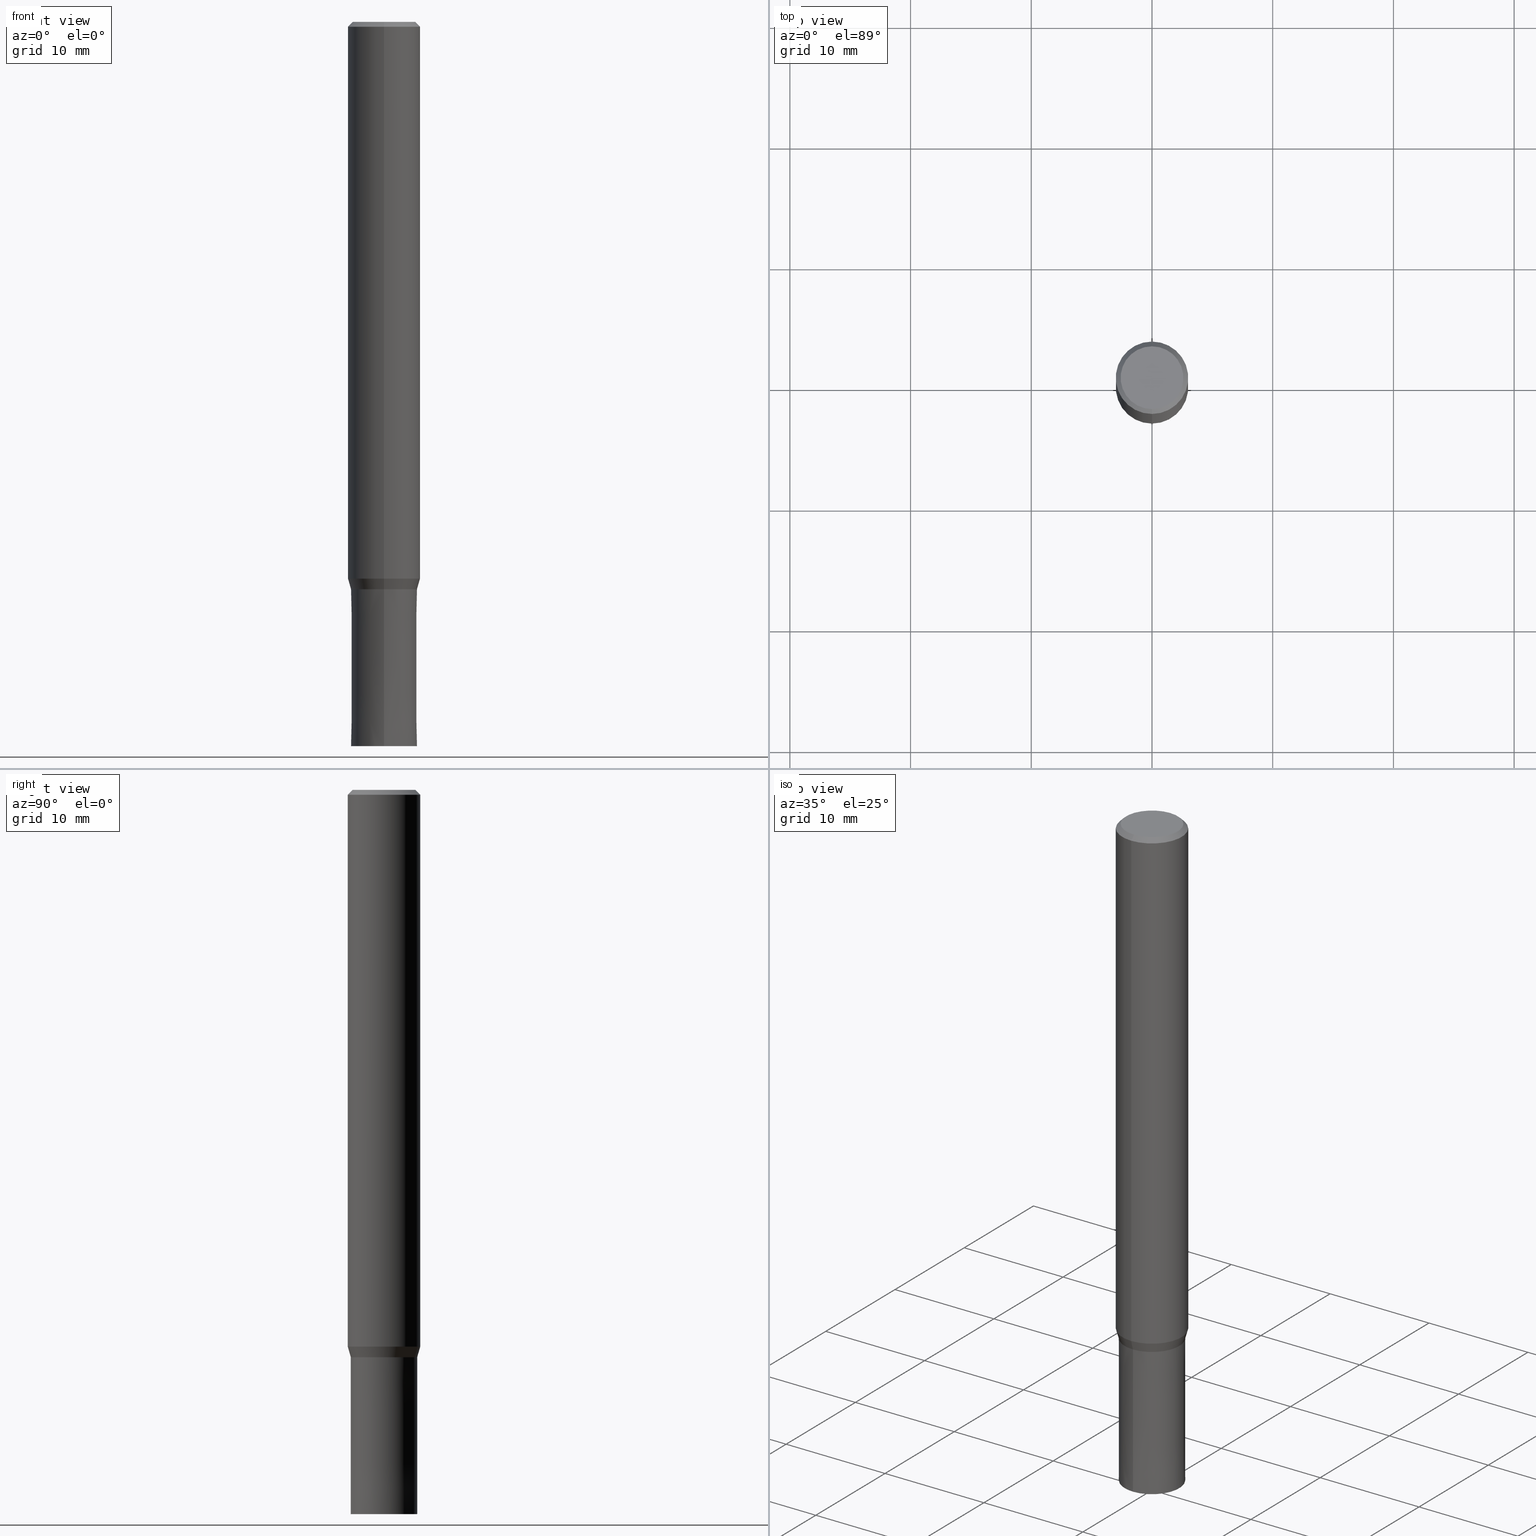
[diagram: canonical four-view strip — front | top / right | iso, engineering-drawing reading convention]
A machine part, canonical four-view strip (front | top / right | iso — engineering-drawing reading convention). The complete STEP part file that produces these views, byte-faithful:
ISO-10303-21;
HEADER;
FILE_DESCRIPTION(('no description'),'unknown implementation level');
FILE_NAME('CZS4055-1300-Huellk.stp','  ',('CIMSOURCE GmbH'),('CADClick - KiM GmbH - www.kimweb.de'),'unknown preprocess','ACIS','unknown authorization');
FILE_SCHEMA(('automotive_design'));
ENDSEC;
DATA;
#1=MECHANICAL_DESIGN_GEOMETRIC_PRESENTATION_REPRESENTATION(' ',(#14,#15,#16,#17,#18,#19,#20,#21,#22,#23,#24,#25,#26,#27,#28,#29,#30,#31,#32,#33,#34,#35,#36,#37,#38,#39,#40,#41,#42,#43,#44,#45,#46,#47,#48,#49,#50,#51,#52,#53,#54,#55,#56,#57,#58,#59,#60,#61,#62,#63,#64),#10);
#2=PRODUCT_DEFINITION_CONTEXT('',#65,'design');
#3=APPLICATION_PROTOCOL_DEFINITION('INTERNATIONAL STANDARD','automotive_design',1994,#65);
#4=PRODUCT_CATEGORY_RELATIONSHIP('NONE','NONE',#66,#67);
#5=SHAPE_DEFINITION_REPRESENTATION(#68,#69);
#6=PRODUCT_DEFINITION_CONTEXT('',#70,'design');
#7=APPLICATION_PROTOCOL_DEFINITION('INTERNATIONAL STANDARD','automotive_design',1994,#70);
#8=PRODUCT_CATEGORY_RELATIONSHIP('NONE','NONE',#71,#72);
#9=SHAPE_DEFINITION_REPRESENTATION(#73,#74);
#10= (GEOMETRIC_REPRESENTATION_CONTEXT(3)GLOBAL_UNCERTAINTY_ASSIGNED_CONTEXT((#77))GLOBAL_UNIT_ASSIGNED_CONTEXT((#79,#80,#81))REPRESENTATION_CONTEXT('NONE','WORKSPACE'));
#14=STYLED_ITEM('',(#83),#84);
#15=STYLED_ITEM('',(#85),#86);
#16=STYLED_ITEM('',(#87),#88);
#17=STYLED_ITEM('',(#89),#90);
#18=STYLED_ITEM('',(#91),#92);
#19=STYLED_ITEM('',(#93),#94);
#20=STYLED_ITEM('',(#95),#96);
#21=STYLED_ITEM('',(#97),#98);
#22=STYLED_ITEM('',(#99),#100);
#23=STYLED_ITEM('',(#101),#102);
#24=STYLED_ITEM('',(#103),#104);
#25=STYLED_ITEM('',(#105),#106);
#26=STYLED_ITEM('',(#107),#108);
#27=STYLED_ITEM('',(#109),#110);
#28=STYLED_ITEM('',(#111),#112);
#29=STYLED_ITEM('',(#113),#114);
#30=STYLED_ITEM('',(#115),#116);
#31=STYLED_ITEM('',(#117),#118);
#32=STYLED_ITEM('',(#119),#120);
#33=STYLED_ITEM('',(#121),#122);
#34=STYLED_ITEM('',(#123),#124);
#35=STYLED_ITEM('',(#125),#126);
#36=STYLED_ITEM('',(#127),#128);
#37=STYLED_ITEM('',(#129),#130);
#38=STYLED_ITEM('',(#131),#132);
#39=STYLED_ITEM('',(#133),#134);
#40=STYLED_ITEM('',(#135),#136);
#41=STYLED_ITEM('',(#137),#138);
#42=STYLED_ITEM('',(#139),#140);
#43=STYLED_ITEM('',(#141),#142);
#44=STYLED_ITEM('',(#143),#144);
#45=STYLED_ITEM('',(#145),#146);
#46=STYLED_ITEM('',(#147),#148);
#47=STYLED_ITEM('',(#149),#150);
#48=STYLED_ITEM('',(#151),#152);
#49=STYLED_ITEM('',(#153),#154);
#50=STYLED_ITEM('',(#155),#156);
#51=STYLED_ITEM('',(#157),#158);
#52=STYLED_ITEM('',(#159),#160);
#53=STYLED_ITEM('',(#161),#162);
#54=STYLED_ITEM('',(#163),#164);
#55=STYLED_ITEM('',(#165),#166);
#56=STYLED_ITEM('',(#167),#168);
#57=STYLED_ITEM('',(#169),#170);
#58=STYLED_ITEM('',(#171),#172);
#59=STYLED_ITEM('',(#173),#174);
#60=STYLED_ITEM('',(#175),#176);
#61=STYLED_ITEM('',(#177),#178);
#62=STYLED_ITEM('',(#179),#180);
#63=STYLED_ITEM('',(#181),#182);
#64=STYLED_ITEM('',(#183),#184);
#65=APPLICATION_CONTEXT(' ');
#66=PRODUCT_CATEGORY('part','NONE');
#67=PRODUCT_RELATED_PRODUCT_CATEGORY('detail',' ',(#185));
#68=PRODUCT_DEFINITION_SHAPE('NONE','NONE',#186);
#69=ADVANCED_BREP_SHAPE_REPRESENTATION('1',(#164,#187),#10);
#70=APPLICATION_CONTEXT(' ');
#71=PRODUCT_CATEGORY('part','NONE');
#72=PRODUCT_RELATED_PRODUCT_CATEGORY('detail',' ',(#188));
#73=PRODUCT_DEFINITION_SHAPE('NONE','NONE',#189);
#74=ADVANCED_BREP_SHAPE_REPRESENTATION('2',(#162,#190),#10);
#77=UNCERTAINTY_MEASURE_WITH_UNIT(LENGTH_MEASURE(1.0E-006),#79,'','');
#79= (CONVERSION_BASED_UNIT('MILLIMETRE',#193)LENGTH_UNIT()NAMED_UNIT(#196));
#80= (NAMED_UNIT(#198)PLANE_ANGLE_UNIT()SI_UNIT($,.RADIAN.));
#81= (NAMED_UNIT(#198)SOLID_ANGLE_UNIT()SI_UNIT($,.STERADIAN.));
#83=PRESENTATION_STYLE_ASSIGNMENT((#204));
#84=EDGE_CURVE('',#108,#136,#205,.T.);
#85=PRESENTATION_STYLE_ASSIGNMENT((#206));
#86=ADVANCED_FACE('',(#207),#208,.T.);
#87=PRESENTATION_STYLE_ASSIGNMENT((#209));
#88=VERTEX_POINT('',#210);
#89=PRESENTATION_STYLE_ASSIGNMENT((#211));
#90=EDGE_CURVE('',#136,#108,#212,.T.);
#91=PRESENTATION_STYLE_ASSIGNMENT((#213));
#92=EDGE_CURVE('',#166,#112,#214,.T.);
#93=PRESENTATION_STYLE_ASSIGNMENT((#215));
#94=VERTEX_POINT('',#216);
#95=PRESENTATION_STYLE_ASSIGNMENT((#217));
#96=ADVANCED_FACE('',(#218),#219,.T.);
#97=PRESENTATION_STYLE_ASSIGNMENT((#220));
#98=ADVANCED_FACE('',(#221),#222,.T.);
#99=PRESENTATION_STYLE_ASSIGNMENT((#223));
#100=EDGE_CURVE('',#112,#166,#224,.T.);
#101=PRESENTATION_STYLE_ASSIGNMENT((#225));
#102=EDGE_CURVE('',#108,#174,#226,.T.);
#103=PRESENTATION_STYLE_ASSIGNMENT((#227));
#104=EDGE_CURVE('',#154,#152,#228,.T.);
#105=PRESENTATION_STYLE_ASSIGNMENT((#229));
#106=ADVANCED_FACE('',(#230,#231),#232,.T.);
#107=PRESENTATION_STYLE_ASSIGNMENT((#233));
#108=VERTEX_POINT('',#234);
#109=PRESENTATION_STYLE_ASSIGNMENT((#235));
#110=EDGE_CURVE('',#172,#170,#236,.T.);
#111=PRESENTATION_STYLE_ASSIGNMENT((#237));
#112=VERTEX_POINT('',#238);
#113=PRESENTATION_STYLE_ASSIGNMENT((#239));
#114=EDGE_CURVE('',#170,#172,#240,.T.);
#115=PRESENTATION_STYLE_ASSIGNMENT((#241));
#116=EDGE_CURVE('',#152,#154,#242,.T.);
#117=PRESENTATION_STYLE_ASSIGNMENT((#243));
#118=ADVANCED_FACE('',(#244),#245,.T.);
#119=PRESENTATION_STYLE_ASSIGNMENT((#246));
#120=VERTEX_POINT('',#247);
#121=PRESENTATION_STYLE_ASSIGNMENT((#248));
#122=EDGE_CURVE('',#120,#94,#249,.T.);
#123=PRESENTATION_STYLE_ASSIGNMENT((#250));
#124=EDGE_CURVE('',#94,#120,#251,.T.);
#125=PRESENTATION_STYLE_ASSIGNMENT((#252));
#126=EDGE_CURVE('',#128,#170,#253,.T.);
#127=PRESENTATION_STYLE_ASSIGNMENT((#254));
#128=VERTEX_POINT('',#255);
#129=PRESENTATION_STYLE_ASSIGNMENT((#256));
#130=ADVANCED_FACE('',(#257),#258,.T.);
#131=PRESENTATION_STYLE_ASSIGNMENT((#259));
#132=EDGE_CURVE('',#94,#112,#260,.T.);
#133=PRESENTATION_STYLE_ASSIGNMENT((#261));
#134=EDGE_CURVE('',#172,#88,#262,.T.);
#135=PRESENTATION_STYLE_ASSIGNMENT((#263));
#136=VERTEX_POINT('',#264);
#137=PRESENTATION_STYLE_ASSIGNMENT((#265));
#138=EDGE_CURVE('',#136,#152,#266,.T.);
#139=PRESENTATION_STYLE_ASSIGNMENT((#267));
#140=ADVANCED_FACE('',(#268),#269,.T.);
#141=PRESENTATION_STYLE_ASSIGNMENT((#270));
#142=EDGE_CURVE('',#144,#174,#271,.T.);
#143=PRESENTATION_STYLE_ASSIGNMENT((#272));
#144=VERTEX_POINT('',#273);
#145=PRESENTATION_STYLE_ASSIGNMENT((#274));
#146=ADVANCED_FACE('',(#275),#276,.T.);
#147=PRESENTATION_STYLE_ASSIGNMENT((#277));
#148=EDGE_CURVE('',#128,#88,#278,.T.);
#149=PRESENTATION_STYLE_ASSIGNMENT((#279));
#150=ADVANCED_FACE('',(#280),#281,.T.);
#151=PRESENTATION_STYLE_ASSIGNMENT((#282));
#152=VERTEX_POINT('',#283);
#153=PRESENTATION_STYLE_ASSIGNMENT((#284));
#154=VERTEX_POINT('',#285);
#155=PRESENTATION_STYLE_ASSIGNMENT((#286));
#156=EDGE_CURVE('',#174,#144,#287,.T.);
#157=PRESENTATION_STYLE_ASSIGNMENT((#288));
#158=ADVANCED_FACE('',(#289),#290,.T.);
#159=PRESENTATION_STYLE_ASSIGNMENT((#291));
#160=EDGE_CURVE('',#166,#120,#292,.T.);
#161=PRESENTATION_STYLE_ASSIGNMENT((#293));
#162=MANIFOLD_SOLID_BREP('2',#294);
#163=PRESENTATION_STYLE_ASSIGNMENT((#295));
#164=MANIFOLD_SOLID_BREP('1',#296);
#165=PRESENTATION_STYLE_ASSIGNMENT((#297));
#166=VERTEX_POINT('',#298);
#167=PRESENTATION_STYLE_ASSIGNMENT((#299));
#168=ADVANCED_FACE('',(#300),#301,.T.);
#169=PRESENTATION_STYLE_ASSIGNMENT((#302));
#170=VERTEX_POINT('',#303);
#171=PRESENTATION_STYLE_ASSIGNMENT((#304));
#172=VERTEX_POINT('',#305);
#173=PRESENTATION_STYLE_ASSIGNMENT((#306));
#174=VERTEX_POINT('',#307);
#175=PRESENTATION_STYLE_ASSIGNMENT((#308));
#176=EDGE_CURVE('',#88,#128,#309,.T.);
#177=PRESENTATION_STYLE_ASSIGNMENT((#310));
#178=ADVANCED_FACE('',(#311),#312,.T.);
#179=PRESENTATION_STYLE_ASSIGNMENT((#313));
#180=EDGE_CURVE('',#154,#108,#314,.T.);
#181=PRESENTATION_STYLE_ASSIGNMENT((#315));
#182=EDGE_CURVE('',#144,#136,#316,.T.);
#183=PRESENTATION_STYLE_ASSIGNMENT((#317));
#184=ADVANCED_FACE('',(#318),#319,.T.);
#185=PRODUCT('1','1','PART-1-DESC',(#320));
#186=PRODUCT_DEFINITION('NONE','NONE',#321,#2);
#187=AXIS2_PLACEMENT_3D('',#322,#323,#324);
#188=PRODUCT('2','2','PART-2-DESC',(#325));
#189=PRODUCT_DEFINITION('NONE','NONE',#326,#6);
#190=AXIS2_PLACEMENT_3D('',#327,#328,#329);
#193=LENGTH_MEASURE_WITH_UNIT(LENGTH_MEASURE(1.0),#330);
#196=DIMENSIONAL_EXPONENTS(1.0,0.0,0.0,0.0,0.0,0.0,0.0);
#198=DIMENSIONAL_EXPONENTS(0.0,0.0,0.0,0.0,0.0,0.0,0.0);
#204=CURVE_STYLE('',#331,POSITIVE_LENGTH_MEASURE(1.0E-006),#332);
#205=CIRCLE('',#333,3.0);
#206=SURFACE_STYLE_USAGE(.BOTH.,#334);
#207=FACE_OUTER_BOUND('',#335,.T.);
#208=CYLINDRICAL_SURFACE('',#336,3.0);
#209=POINT_STYLE(' ',#337,POSITIVE_LENGTH_MEASURE(1.0E-006),#338);
#210=CARTESIAN_POINT('',(3.67375783114944E-016,-2.99995,-46.128));
#211=CURVE_STYLE('',#339,POSITIVE_LENGTH_MEASURE(1.0E-006),#340);
#212=CIRCLE('',#341,3.0);
#213=CURVE_STYLE('',#342,POSITIVE_LENGTH_MEASURE(1.0E-006),#343);
#214=CIRCLE('',#344,2.7499);
#215=POINT_STYLE(' ',#345,POSITIVE_LENGTH_MEASURE(1.0E-006),#346);
#216=CARTESIAN_POINT('',(3.36766747301154E-016,-2.75,-60.0));
#217=SURFACE_STYLE_USAGE(.BOTH.,#347);
#218=FACE_OUTER_BOUND('',#348,.T.);
#219=PLANE('',#349);
#220=SURFACE_STYLE_USAGE(.BOTH.,#350);
#221=FACE_OUTER_BOUND('',#351,.T.);
#222=CONICAL_SURFACE('',#352,2.74995,7.6923076921722E-006);
#223=CURVE_STYLE('',#353,POSITIVE_LENGTH_MEASURE(1.0E-006),#354);
#224=CIRCLE('',#355,2.7499);
#225=CURVE_STYLE('',#356,POSITIVE_LENGTH_MEASURE(1.0E-006),#357);
#226=LINE('',#358,#359);
#227=CURVE_STYLE('',#360,POSITIVE_LENGTH_MEASURE(1.0E-006),#361);
#228=CIRCLE('',#362,3.0);
#229=SURFACE_STYLE_USAGE(.BOTH.,#363);
#230=FACE_OUTER_BOUND('',#364,.T.);
#231=FACE_BOUND('',#365,.T.);
#232=PLANE('',#366);
#233=POINT_STYLE(' ',#367,POSITIVE_LENGTH_MEASURE(1.0E-006),#368);
#234=CARTESIAN_POINT('',(3.67381906146713E-016,-3.0,-0.399999999999999));
#235=CURVE_STYLE('',#369,POSITIVE_LENGTH_MEASURE(1.0E-006),#370);
#236=CIRCLE('',#371,2.74995);
#237=POINT_STYLE(' ',#372,POSITIVE_LENGTH_MEASURE(1.0E-006),#373);
#238=CARTESIAN_POINT('',(3.36754501237616E-016,-2.7499,-47.0));
#239=CURVE_STYLE('',#374,POSITIVE_LENGTH_MEASURE(1.0E-006),#375);
#240=CIRCLE('',#376,2.74995);
#241=CURVE_STYLE('',#377,POSITIVE_LENGTH_MEASURE(1.0E-006),#378);
#242=CIRCLE('',#379,3.0);
#243=SURFACE_STYLE_USAGE(.BOTH.,#380);
#244=FACE_OUTER_BOUND('',#381,.T.);
#245=CONICAL_SURFACE('',#382,2.8,0.78539816339745);
#246=POINT_STYLE(' ',#383,POSITIVE_LENGTH_MEASURE(1.0E-006),#384);
#247=CARTESIAN_POINT('',(0.0,2.75,-60.0));
#248=CURVE_STYLE('',#385,POSITIVE_LENGTH_MEASURE(1.0E-006),#386);
#249=CIRCLE('',#387,2.75);
#250=CURVE_STYLE('',#388,POSITIVE_LENGTH_MEASURE(1.0E-006),#389);
#251=CIRCLE('',#390,2.75);
#252=CURVE_STYLE('',#391,POSITIVE_LENGTH_MEASURE(1.0E-006),#392);
#253=LINE('',#393,#394);
#254=POINT_STYLE(' ',#395,POSITIVE_LENGTH_MEASURE(1.0E-006),#396);
#255=CARTESIAN_POINT('',(0.0,2.99995,-46.128));
#256=SURFACE_STYLE_USAGE(.BOTH.,#397);
#257=FACE_OUTER_BOUND('',#398,.T.);
#258=PLANE('',#399);
#259=CURVE_STYLE('',#400,POSITIVE_LENGTH_MEASURE(1.0E-006),#401);
#260=LINE('',#402,#403);
#261=CURVE_STYLE('',#404,POSITIVE_LENGTH_MEASURE(1.0E-006),#405);
#262=LINE('',#406,#407);
#263=POINT_STYLE(' ',#408,POSITIVE_LENGTH_MEASURE(1.0E-006),#409);
#264=CARTESIAN_POINT('',(0.0,3.0,-0.399999999999999));
#265=CURVE_STYLE('',#410,POSITIVE_LENGTH_MEASURE(1.0E-006),#411);
#266=LINE('',#412,#413);
#267=SURFACE_STYLE_USAGE(.BOTH.,#414);
#268=FACE_OUTER_BOUND('',#415,.T.);
#269=CONICAL_SURFACE('',#416,2.87495,0.279208199033747);
#270=CURVE_STYLE('',#417,POSITIVE_LENGTH_MEASURE(1.0E-006),#418);
#271=CIRCLE('',#419,2.6);
#272=POINT_STYLE(' ',#420,POSITIVE_LENGTH_MEASURE(1.0E-006),#421);
#273=CARTESIAN_POINT('',(0.0,2.6,0.0));
#274=SURFACE_STYLE_USAGE(.BOTH.,#422);
#275=FACE_OUTER_BOUND('',#423,.T.);
#276=PLANE('',#424);
#277=CURVE_STYLE('',#425,POSITIVE_LENGTH_MEASURE(1.0E-006),#426);
#278=CIRCLE('',#427,2.99995);
#279=SURFACE_STYLE_USAGE(.BOTH.,#428);
#280=FACE_OUTER_BOUND('',#429,.T.);
#281=CONICAL_SURFACE('',#430,2.74995,7.6923076921722E-006);
#282=POINT_STYLE(' ',#431,POSITIVE_LENGTH_MEASURE(1.0E-006),#432);
#283=CARTESIAN_POINT('',(0.0,3.0,-46.128));
#284=POINT_STYLE(' ',#433,POSITIVE_LENGTH_MEASURE(1.0E-006),#434);
#285=CARTESIAN_POINT('',(3.67381906146713E-016,-3.0,-46.128));
#286=CURVE_STYLE('',#435,POSITIVE_LENGTH_MEASURE(1.0E-006),#436);
#287=CIRCLE('',#437,2.6);
#288=SURFACE_STYLE_USAGE(.BOTH.,#438);
#289=FACE_OUTER_BOUND('',#439,.T.);
#290=CYLINDRICAL_SURFACE('',#440,3.0);
#291=CURVE_STYLE('',#441,POSITIVE_LENGTH_MEASURE(1.0E-006),#442);
#292=LINE('',#443,#444);
#293=SURFACE_STYLE_USAGE(.BOTH.,#445);
#294=CLOSED_SHELL('',(#150,#130,#98,#146));
#295=SURFACE_STYLE_USAGE(.BOTH.,#446);
#296=CLOSED_SHELL('',(#140,#158,#118,#106,#96,#168,#86,#178,#184));
#297=POINT_STYLE(' ',#447,POSITIVE_LENGTH_MEASURE(1.0E-006),#448);
#298=CARTESIAN_POINT('',(0.0,2.7499,-47.0));
#299=SURFACE_STYLE_USAGE(.BOTH.,#449);
#300=FACE_OUTER_BOUND('',#450,.T.);
#301=CONICAL_SURFACE('',#451,2.8,0.78539816339745);
#302=POINT_STYLE(' ',#452,POSITIVE_LENGTH_MEASURE(1.0E-006),#453);
#303=CARTESIAN_POINT('',(0.0,2.74995,-47.0));
#304=POINT_STYLE(' ',#454,POSITIVE_LENGTH_MEASURE(1.0E-006),#455);
#305=CARTESIAN_POINT('',(3.36760624269385E-016,-2.74995,-47.0));
#306=POINT_STYLE(' ',#456,POSITIVE_LENGTH_MEASURE(1.0E-006),#457);
#307=CARTESIAN_POINT('',(3.18397651993818E-016,-2.6,0.0));
#308=CURVE_STYLE('',#458,POSITIVE_LENGTH_MEASURE(1.0E-006),#459);
#309=CIRCLE('',#460,2.99995);
#310=SURFACE_STYLE_USAGE(.BOTH.,#461);
#311=FACE_OUTER_BOUND('',#462,.T.);
#312=CONICAL_SURFACE('',#463,2.87495,0.279208199033747);
#313=CURVE_STYLE('',#464,POSITIVE_LENGTH_MEASURE(1.0E-006),#465);
#314=LINE('',#466,#467);
#315=CURVE_STYLE('',#468,POSITIVE_LENGTH_MEASURE(1.0E-006),#469);
#316=LINE('',#470,#471);
#317=SURFACE_STYLE_USAGE(.BOTH.,#472);
#318=FACE_OUTER_BOUND('',#473,.T.);
#319=PLANE('',#474);
#320=PRODUCT_CONTEXT('',#65,'mechanical');
#321=PRODUCT_DEFINITION_FORMATION_WITH_SPECIFIED_SOURCE(' ','NONE',#185,.NOT_KNOWN.);
#322=CARTESIAN_POINT('',(0.0,0.0,0.0));
#323=DIRECTION('',(0.0,0.0,1.0));
#324=DIRECTION('',(1.0,0.0,0.0));
#325=PRODUCT_CONTEXT('',#70,'mechanical');
#326=PRODUCT_DEFINITION_FORMATION_WITH_SPECIFIED_SOURCE(' ','NONE',#188,.NOT_KNOWN.);
#327=CARTESIAN_POINT('',(0.0,0.0,0.0));
#328=DIRECTION('',(0.0,0.0,1.0));
#329=DIRECTION('',(1.0,0.0,0.0));
#330= (NAMED_UNIT(#196)LENGTH_UNIT()SI_UNIT(.MILLI.,.METRE.));
#331=DRAUGHTING_PRE_DEFINED_CURVE_FONT('continuous');
#332=COLOUR_RGB('',0.498039215803146,0.498039215803146,0.498039215803146);
#333=AXIS2_PLACEMENT_3D('',#476,#477,#478);
#334=SURFACE_SIDE_STYLE('',(#479));
#335=EDGE_LOOP('',(#480,#481,#482,#483));
#336=AXIS2_PLACEMENT_3D('',#484,#485,#486);
#337=PRE_DEFINED_MARKER('');
#338=COLOUR_RGB('',0.498039215803146,0.498039215803146,0.498039215803146);
#339=DRAUGHTING_PRE_DEFINED_CURVE_FONT('continuous');
#340=COLOUR_RGB('',0.498039215803146,0.498039215803146,0.498039215803146);
#341=AXIS2_PLACEMENT_3D('',#487,#488,#489);
#342=DRAUGHTING_PRE_DEFINED_CURVE_FONT('continuous');
#343=COLOUR_RGB('',0.800000011920929,0.800000011920929,0.800000011920929);
#344=AXIS2_PLACEMENT_3D('',#490,#491,#492);
#345=PRE_DEFINED_MARKER('');
#346=COLOUR_RGB('',0.800000011920929,0.800000011920929,0.800000011920929);
#347=SURFACE_SIDE_STYLE('',(#493));
#348=EDGE_LOOP('',(#494,#495));
#349=AXIS2_PLACEMENT_3D('',#496,#497,#498);
#350=SURFACE_SIDE_STYLE('',(#499));
#351=EDGE_LOOP('',(#500,#501,#502,#503));
#352=AXIS2_PLACEMENT_3D('',#504,#505,#506);
#353=DRAUGHTING_PRE_DEFINED_CURVE_FONT('continuous');
#354=COLOUR_RGB('',0.800000011920929,0.800000011920929,0.800000011920929);
#355=AXIS2_PLACEMENT_3D('',#507,#508,#509);
#356=DRAUGHTING_PRE_DEFINED_CURVE_FONT('continuous');
#357=COLOUR_RGB('',0.498039215803146,0.498039215803146,0.498039215803146);
#358=CARTESIAN_POINT('',(3.42889779070266E-016,-2.8,-0.200000000000003));
#359=VECTOR('',#510,1.0);
#360=DRAUGHTING_PRE_DEFINED_CURVE_FONT('continuous');
#361=COLOUR_RGB('',0.498039215803146,0.498039215803146,0.498039215803146);
#362=AXIS2_PLACEMENT_3D('',#511,#512,#513);
#363=SURFACE_SIDE_STYLE('',(#514));
#364=EDGE_LOOP('',(#515,#516));
#365=EDGE_LOOP('',(#517,#518));
#366=AXIS2_PLACEMENT_3D('',#519,#520,#521);
#367=PRE_DEFINED_MARKER('');
#368=COLOUR_RGB('',0.498039215803146,0.498039215803146,0.498039215803146);
#369=DRAUGHTING_PRE_DEFINED_CURVE_FONT('continuous');
#370=COLOUR_RGB('',0.498039215803146,0.498039215803146,0.498039215803146);
#371=AXIS2_PLACEMENT_3D('',#522,#523,#524);
#372=PRE_DEFINED_MARKER('');
#373=COLOUR_RGB('',0.800000011920929,0.800000011920929,0.800000011920929);
#374=DRAUGHTING_PRE_DEFINED_CURVE_FONT('continuous');
#375=COLOUR_RGB('',0.498039215803146,0.498039215803146,0.498039215803146);
#376=AXIS2_PLACEMENT_3D('',#525,#526,#527);
#377=DRAUGHTING_PRE_DEFINED_CURVE_FONT('continuous');
#378=COLOUR_RGB('',0.498039215803146,0.498039215803146,0.498039215803146);
#379=AXIS2_PLACEMENT_3D('',#528,#529,#530);
#380=SURFACE_SIDE_STYLE('',(#531));
#381=EDGE_LOOP('',(#532,#533,#534,#535));
#382=AXIS2_PLACEMENT_3D('',#536,#537,#538);
#383=PRE_DEFINED_MARKER('');
#384=COLOUR_RGB('',0.800000011920929,0.800000011920929,0.800000011920929);
#385=DRAUGHTING_PRE_DEFINED_CURVE_FONT('continuous');
#386=COLOUR_RGB('',0.800000011920929,0.800000011920929,0.800000011920929);
#387=AXIS2_PLACEMENT_3D('',#539,#540,#541);
#388=DRAUGHTING_PRE_DEFINED_CURVE_FONT('continuous');
#389=COLOUR_RGB('',0.800000011920929,0.800000011920929,0.800000011920929);
#390=AXIS2_PLACEMENT_3D('',#542,#543,#544);
#391=DRAUGHTING_PRE_DEFINED_CURVE_FONT('continuous');
#392=COLOUR_RGB('',0.498039215803146,0.498039215803146,0.498039215803146);
#393=CARTESIAN_POINT('',(-3.52068203692164E-016,2.87495,-46.564));
#394=VECTOR('',#545,1.0);
#395=PRE_DEFINED_MARKER('');
#396=COLOUR_RGB('',0.498039215803146,0.498039215803146,0.498039215803146);
#397=SURFACE_SIDE_STYLE('',(#546));
#398=EDGE_LOOP('',(#547,#548));
#399=AXIS2_PLACEMENT_3D('',#549,#550,#551);
#400=DRAUGHTING_PRE_DEFINED_CURVE_FONT('continuous');
#401=COLOUR_RGB('',0.800000011920929,0.800000011920929,0.800000011920929);
#402=CARTESIAN_POINT('',(3.36760624269385E-016,-2.74995,-53.5));
#403=VECTOR('',#552,1.0);
#404=DRAUGHTING_PRE_DEFINED_CURVE_FONT('continuous');
#405=COLOUR_RGB('',0.498039215803146,0.498039215803146,0.498039215803146);
#406=CARTESIAN_POINT('',(3.52068203692164E-016,-2.87495,-46.564));
#407=VECTOR('',#553,1.0);
#408=PRE_DEFINED_MARKER('');
#409=COLOUR_RGB('',0.498039215803146,0.498039215803146,0.498039215803146);
#410=DRAUGHTING_PRE_DEFINED_CURVE_FONT('continuous');
#411=COLOUR_RGB('',0.498039215803146,0.498039215803146,0.498039215803146);
#412=CARTESIAN_POINT('',(-3.67381906146713E-016,3.0,-23.264));
#413=VECTOR('',#554,1.0);
#414=SURFACE_SIDE_STYLE('',(#555));
#415=EDGE_LOOP('',(#556,#557,#558,#559));
#416=AXIS2_PLACEMENT_3D('',#560,#561,#562);
#417=DRAUGHTING_PRE_DEFINED_CURVE_FONT('continuous');
#418=COLOUR_RGB('',0.498039215803146,0.498039215803146,0.498039215803146);
#419=AXIS2_PLACEMENT_3D('',#563,#564,#565);
#420=PRE_DEFINED_MARKER('');
#421=COLOUR_RGB('',0.498039215803146,0.498039215803146,0.498039215803146);
#422=SURFACE_SIDE_STYLE('',(#566));
#423=EDGE_LOOP('',(#567,#568));
#424=AXIS2_PLACEMENT_3D('',#569,#570,#571);
#425=DRAUGHTING_PRE_DEFINED_CURVE_FONT('continuous');
#426=COLOUR_RGB('',0.498039215803146,0.498039215803146,0.498039215803146);
#427=AXIS2_PLACEMENT_3D('',#572,#573,#574);
#428=SURFACE_SIDE_STYLE('',(#575));
#429=EDGE_LOOP('',(#576,#577,#578,#579));
#430=AXIS2_PLACEMENT_3D('',#580,#581,#582);
#431=PRE_DEFINED_MARKER('');
#432=COLOUR_RGB('',0.498039215803146,0.498039215803146,0.498039215803146);
#433=PRE_DEFINED_MARKER('');
#434=COLOUR_RGB('',0.498039215803146,0.498039215803146,0.498039215803146);
#435=DRAUGHTING_PRE_DEFINED_CURVE_FONT('continuous');
#436=COLOUR_RGB('',0.498039215803146,0.498039215803146,0.498039215803146);
#437=AXIS2_PLACEMENT_3D('',#583,#584,#585);
#438=SURFACE_SIDE_STYLE('',(#586));
#439=EDGE_LOOP('',(#587,#588,#589,#590));
#440=AXIS2_PLACEMENT_3D('',#591,#592,#593);
#441=DRAUGHTING_PRE_DEFINED_CURVE_FONT('continuous');
#442=COLOUR_RGB('',0.800000011920929,0.800000011920929,0.800000011920929);
#443=CARTESIAN_POINT('',(-3.36760624269385E-016,2.74995,-53.5));
#444=VECTOR('',#594,1.0);
#445=SURFACE_SIDE_STYLE('',(#595));
#446=SURFACE_SIDE_STYLE('',(#596));
#447=PRE_DEFINED_MARKER('');
#448=COLOUR_RGB('',0.800000011920929,0.800000011920929,0.800000011920929);
#449=SURFACE_SIDE_STYLE('',(#597));
#450=EDGE_LOOP('',(#598,#599,#600,#601));
#451=AXIS2_PLACEMENT_3D('',#602,#603,#604);
#452=PRE_DEFINED_MARKER('');
#453=COLOUR_RGB('',0.498039215803146,0.498039215803146,0.498039215803146);
#454=PRE_DEFINED_MARKER('');
#455=COLOUR_RGB('',0.498039215803146,0.498039215803146,0.498039215803146);
#456=PRE_DEFINED_MARKER('');
#457=COLOUR_RGB('',0.498039215803146,0.498039215803146,0.498039215803146);
#458=DRAUGHTING_PRE_DEFINED_CURVE_FONT('continuous');
#459=COLOUR_RGB('',0.498039215803146,0.498039215803146,0.498039215803146);
#460=AXIS2_PLACEMENT_3D('',#605,#606,#607);
#461=SURFACE_SIDE_STYLE('',(#608));
#462=EDGE_LOOP('',(#609,#610,#611,#612));
#463=AXIS2_PLACEMENT_3D('',#613,#614,#615);
#464=DRAUGHTING_PRE_DEFINED_CURVE_FONT('continuous');
#465=COLOUR_RGB('',0.498039215803146,0.498039215803146,0.498039215803146);
#466=CARTESIAN_POINT('',(3.67381906146713E-016,-3.0,-23.264));
#467=VECTOR('',#616,1.0);
#468=DRAUGHTING_PRE_DEFINED_CURVE_FONT('continuous');
#469=COLOUR_RGB('',0.498039215803146,0.498039215803146,0.498039215803146);
#470=CARTESIAN_POINT('',(-3.42889779070266E-016,2.8,-0.200000000000003));
#471=VECTOR('',#617,1.0);
#472=SURFACE_SIDE_STYLE('',(#618));
#473=EDGE_LOOP('',(#619,#620));
#474=AXIS2_PLACEMENT_3D('',#621,#622,#623);
#476=CARTESIAN_POINT('',(0.0,0.0,-0.399999999999999));
#477=DIRECTION('',(0.0,0.0,-1.0));
#478=DIRECTION('',(0.0,1.0,0.0));
#479=SURFACE_STYLE_FILL_AREA(#624);
#480=ORIENTED_EDGE('',*,*,#138,.T.);
#481=ORIENTED_EDGE('',*,*,#104,.F.);
#482=ORIENTED_EDGE('',*,*,#180,.T.);
#483=ORIENTED_EDGE('',*,*,#84,.T.);
#484=CARTESIAN_POINT('',(0.0,0.0,-23.264));
#485=DIRECTION('',(-0.0,-0.0,1.0));
#486=DIRECTION('',(0.0,1.0,0.0));
#487=CARTESIAN_POINT('',(0.0,0.0,-0.399999999999999));
#488=DIRECTION('',(0.0,0.0,-1.0));
#489=DIRECTION('',(0.0,1.0,0.0));
#490=CARTESIAN_POINT('',(0.0,0.0,-47.0));
#491=DIRECTION('',(0.0,0.0,-1.0));
#492=DIRECTION('',(0.0,1.0,0.0));
#493=SURFACE_STYLE_FILL_AREA(#625);
#494=ORIENTED_EDGE('',*,*,#142,.F.);
#495=ORIENTED_EDGE('',*,*,#156,.F.);
#496=CARTESIAN_POINT('',(0.0,1.3,0.0));
#497=DIRECTION('',(-0.0,0.0,1.0));
#498=DIRECTION('',(0.0,-1.0,0.0));
#499=SURFACE_STYLE_FILL_AREA(#626);
#500=ORIENTED_EDGE('',*,*,#160,.T.);
#501=ORIENTED_EDGE('',*,*,#124,.F.);
#502=ORIENTED_EDGE('',*,*,#132,.T.);
#503=ORIENTED_EDGE('',*,*,#100,.T.);
#504=CARTESIAN_POINT('',(0.0,0.0,-53.5));
#505=DIRECTION('',(0.0,-0.0,-1.0));
#506=DIRECTION('',(0.0,1.0,0.0));
#507=CARTESIAN_POINT('',(0.0,0.0,-47.0));
#508=DIRECTION('',(0.0,0.0,-1.0));
#509=DIRECTION('',(0.0,1.0,0.0));
#510=DIRECTION('',(-8.65927457071937E-017,0.707106781186549,0.707106781186546));
#511=CARTESIAN_POINT('',(0.0,0.0,-46.128));
#512=DIRECTION('',(0.0,0.0,-1.0));
#513=DIRECTION('',(0.0,1.0,0.0));
#514=SURFACE_STYLE_FILL_AREA(#627);
#515=ORIENTED_EDGE('',*,*,#116,.T.);
#516=ORIENTED_EDGE('',*,*,#104,.T.);
#517=ORIENTED_EDGE('',*,*,#148,.F.);
#518=ORIENTED_EDGE('',*,*,#176,.F.);
#519=CARTESIAN_POINT('',(0.0,1.5,-46.128));
#520=DIRECTION('',(0.0,0.0,-1.0));
#521=DIRECTION('',(0.0,1.0,0.0));
#522=CARTESIAN_POINT('',(0.0,0.0,-47.0));
#523=DIRECTION('',(0.0,0.0,-1.0));
#524=DIRECTION('',(0.0,1.0,0.0));
#525=CARTESIAN_POINT('',(0.0,0.0,-47.0));
#526=DIRECTION('',(0.0,0.0,-1.0));
#527=DIRECTION('',(0.0,1.0,0.0));
#528=CARTESIAN_POINT('',(0.0,0.0,-46.128));
#529=DIRECTION('',(0.0,0.0,-1.0));
#530=DIRECTION('',(0.0,1.0,0.0));
#531=SURFACE_STYLE_FILL_AREA(#628);
#532=ORIENTED_EDGE('',*,*,#182,.F.);
#533=ORIENTED_EDGE('',*,*,#142,.T.);
#534=ORIENTED_EDGE('',*,*,#102,.F.);
#535=ORIENTED_EDGE('',*,*,#90,.F.);
#536=CARTESIAN_POINT('',(0.0,0.0,-0.200000000000003));
#537=DIRECTION('',(0.0,-0.0,-1.0));
#538=DIRECTION('',(0.0,1.0,0.0));
#539=CARTESIAN_POINT('',(0.0,0.0,-60.0));
#540=DIRECTION('',(0.0,0.0,-1.0));
#541=DIRECTION('',(0.0,1.0,0.0));
#542=CARTESIAN_POINT('',(0.0,0.0,-60.0));
#543=DIRECTION('',(0.0,0.0,-1.0));
#544=DIRECTION('',(0.0,1.0,0.0));
#545=DIRECTION('',(3.37494895041124E-017,-0.275594597388538,-0.961273955691222));
#546=SURFACE_STYLE_FILL_AREA(#629);
#547=ORIENTED_EDGE('',*,*,#92,.F.);
#548=ORIENTED_EDGE('',*,*,#100,.F.);
#549=CARTESIAN_POINT('',(0.0,1.37495,-47.0));
#550=DIRECTION('',(-0.0,0.0,1.0));
#551=DIRECTION('',(0.0,-1.0,0.0));
#552=DIRECTION('',(-9.42004887529793E-022,7.69230769209634E-006,0.999999999970414));
#553=DIRECTION('',(3.37494895041124E-017,-0.275594597388538,0.961273955691222));
#554=DIRECTION('',(0.0,0.0,-1.0));
#555=SURFACE_STYLE_FILL_AREA(#630);
#556=ORIENTED_EDGE('',*,*,#126,.F.);
#557=ORIENTED_EDGE('',*,*,#148,.T.);
#558=ORIENTED_EDGE('',*,*,#134,.F.);
#559=ORIENTED_EDGE('',*,*,#114,.F.);
#560=CARTESIAN_POINT('',(0.0,0.0,-46.564));
#561=DIRECTION('',(-0.0,-0.0,1.0));
#562=DIRECTION('',(0.0,1.0,0.0));
#563=CARTESIAN_POINT('',(0.0,0.0,0.0));
#564=DIRECTION('',(0.0,0.0,-1.0));
#565=DIRECTION('',(0.0,1.0,0.0));
#566=SURFACE_STYLE_FILL_AREA(#631);
#567=ORIENTED_EDGE('',*,*,#122,.T.);
#568=ORIENTED_EDGE('',*,*,#124,.T.);
#569=CARTESIAN_POINT('',(0.0,1.3725,-60.0));
#570=DIRECTION('',(0.0,0.0,-1.0));
#571=DIRECTION('',(0.0,1.0,0.0));
#572=CARTESIAN_POINT('',(0.0,0.0,-46.128));
#573=DIRECTION('',(0.0,0.0,-1.0));
#574=DIRECTION('',(0.0,1.0,0.0));
#575=SURFACE_STYLE_FILL_AREA(#632);
#576=ORIENTED_EDGE('',*,*,#160,.F.);
#577=ORIENTED_EDGE('',*,*,#92,.T.);
#578=ORIENTED_EDGE('',*,*,#132,.F.);
#579=ORIENTED_EDGE('',*,*,#122,.F.);
#580=CARTESIAN_POINT('',(0.0,0.0,-53.5));
#581=DIRECTION('',(0.0,-0.0,-1.0));
#582=DIRECTION('',(0.0,1.0,0.0));
#583=CARTESIAN_POINT('',(0.0,0.0,0.0));
#584=DIRECTION('',(0.0,0.0,-1.0));
#585=DIRECTION('',(0.0,1.0,0.0));
#586=SURFACE_STYLE_FILL_AREA(#633);
#587=ORIENTED_EDGE('',*,*,#138,.F.);
#588=ORIENTED_EDGE('',*,*,#90,.T.);
#589=ORIENTED_EDGE('',*,*,#180,.F.);
#590=ORIENTED_EDGE('',*,*,#116,.F.);
#591=CARTESIAN_POINT('',(0.0,0.0,-23.264));
#592=DIRECTION('',(-0.0,-0.0,1.0));
#593=DIRECTION('',(0.0,1.0,0.0));
#594=DIRECTION('',(-9.42004887529793E-022,7.69230769209634E-006,-0.999999999970414));
#595=SURFACE_STYLE_FILL_AREA(#634);
#596=SURFACE_STYLE_FILL_AREA(#635);
#597=SURFACE_STYLE_FILL_AREA(#636);
#598=ORIENTED_EDGE('',*,*,#182,.T.);
#599=ORIENTED_EDGE('',*,*,#84,.F.);
#600=ORIENTED_EDGE('',*,*,#102,.T.);
#601=ORIENTED_EDGE('',*,*,#156,.T.);
#602=CARTESIAN_POINT('',(0.0,0.0,-0.200000000000003));
#603=DIRECTION('',(0.0,-0.0,-1.0));
#604=DIRECTION('',(0.0,1.0,0.0));
#605=CARTESIAN_POINT('',(0.0,0.0,-46.128));
#606=DIRECTION('',(0.0,0.0,-1.0));
#607=DIRECTION('',(0.0,1.0,0.0));
#608=SURFACE_STYLE_FILL_AREA(#637);
#609=ORIENTED_EDGE('',*,*,#126,.T.);
#610=ORIENTED_EDGE('',*,*,#110,.F.);
#611=ORIENTED_EDGE('',*,*,#134,.T.);
#612=ORIENTED_EDGE('',*,*,#176,.T.);
#613=CARTESIAN_POINT('',(0.0,0.0,-46.564));
#614=DIRECTION('',(-0.0,-0.0,1.0));
#615=DIRECTION('',(0.0,1.0,0.0));
#616=DIRECTION('',(-0.0,-0.0,1.0));
#617=DIRECTION('',(-8.65927457071937E-017,0.707106781186549,-0.707106781186546));
#618=SURFACE_STYLE_FILL_AREA(#638);
#619=ORIENTED_EDGE('',*,*,#114,.T.);
#620=ORIENTED_EDGE('',*,*,#110,.T.);
#621=CARTESIAN_POINT('',(0.0,1.374975,-47.0));
#622=DIRECTION('',(0.0,0.0,-1.0));
#623=DIRECTION('',(0.0,1.0,0.0));
#624=FILL_AREA_STYLE('',(#639));
#625=FILL_AREA_STYLE('',(#640));
#626=FILL_AREA_STYLE('',(#641));
#627=FILL_AREA_STYLE('',(#642));
#628=FILL_AREA_STYLE('',(#643));
#629=FILL_AREA_STYLE('',(#644));
#630=FILL_AREA_STYLE('',(#645));
#631=FILL_AREA_STYLE('',(#646));
#632=FILL_AREA_STYLE('',(#647));
#633=FILL_AREA_STYLE('',(#648));
#634=FILL_AREA_STYLE('',(#649));
#635=FILL_AREA_STYLE('',(#650));
#636=FILL_AREA_STYLE('',(#651));
#637=FILL_AREA_STYLE('',(#652));
#638=FILL_AREA_STYLE('',(#653));
#639=FILL_AREA_STYLE_COLOUR('',#654);
#640=FILL_AREA_STYLE_COLOUR('',#655);
#641=FILL_AREA_STYLE_COLOUR('',#656);
#642=FILL_AREA_STYLE_COLOUR('',#657);
#643=FILL_AREA_STYLE_COLOUR('',#658);
#644=FILL_AREA_STYLE_COLOUR('',#659);
#645=FILL_AREA_STYLE_COLOUR('',#660);
#646=FILL_AREA_STYLE_COLOUR('',#661);
#647=FILL_AREA_STYLE_COLOUR('',#662);
#648=FILL_AREA_STYLE_COLOUR('',#663);
#649=FILL_AREA_STYLE_COLOUR('',#664);
#650=FILL_AREA_STYLE_COLOUR('',#665);
#651=FILL_AREA_STYLE_COLOUR('',#666);
#652=FILL_AREA_STYLE_COLOUR('',#667);
#653=FILL_AREA_STYLE_COLOUR('',#668);
#654=COLOUR_RGB('',0.498039215803146,0.498039215803146,0.498039215803146);
#655=COLOUR_RGB('',0.498039215803146,0.498039215803146,0.498039215803146);
#656=COLOUR_RGB('',0.800000011920929,0.800000011920929,0.800000011920929);
#657=COLOUR_RGB('',0.498039215803146,0.498039215803146,0.498039215803146);
#658=COLOUR_RGB('',0.498039215803146,0.498039215803146,0.498039215803146);
#659=COLOUR_RGB('',0.800000011920929,0.800000011920929,0.800000011920929);
#660=COLOUR_RGB('',0.498039215803146,0.498039215803146,0.498039215803146);
#661=COLOUR_RGB('',0.800000011920929,0.800000011920929,0.800000011920929);
#662=COLOUR_RGB('',0.800000011920929,0.800000011920929,0.800000011920929);
#663=COLOUR_RGB('',0.498039215803146,0.498039215803146,0.498039215803146);
#664=COLOUR_RGB('',0.800000011920929,0.800000011920929,0.800000011920929);
#665=COLOUR_RGB('',0.498039215803146,0.498039215803146,0.498039215803146);
#666=COLOUR_RGB('',0.498039215803146,0.498039215803146,0.498039215803146);
#667=COLOUR_RGB('',0.498039215803146,0.498039215803146,0.498039215803146);
#668=COLOUR_RGB('',0.498039215803146,0.498039215803146,0.498039215803146);
#669=AXIS2_PLACEMENT_3D('PCS',#670,#671,#672);
#670=CARTESIAN_POINT('',(0.0,0.0,0.0));
#671=DIRECTION('',(0.0,0.0,1.0));
#672=DIRECTION('',(1.0,0.0,0.0));
#673=AXIS2_PLACEMENT_3D('CIP',#674,#675,#676);
#674=CARTESIAN_POINT('',(0.0,0.0,-60.0));
#675=DIRECTION('',(0.0,0.0,1.0));
#676=DIRECTION('',(1.0,0.0,0.0));
#677=AXIS2_PLACEMENT_3D('CRP',#678,#679,#680);
#678=CARTESIAN_POINT('',(-2.75,0.0,-60.0));
#679=DIRECTION('',(0.0,0.0,1.0));
#680=DIRECTION('',(1.0,0.0,0.0));
#681=AXIS2_PLACEMENT_3D('MCS',#682,#683,#684);
#682=CARTESIAN_POINT('',(0.0,0.0,-46.128));
#683=DIRECTION('',(0.0,0.0,1.0));
#684=DIRECTION('',(1.0,0.0,0.0));
#685=CONSTRUCTIVE_GEOMETRY_REPRESENTATION_RELATIONSHIP('coordinate systems',$,#69,#686);
#686=CONSTRUCTIVE_GEOMETRY_REPRESENTATION('coordinate systems',(#669,#673,#677,#681),#10);
ENDSEC;
END-ISO-10303-21;
